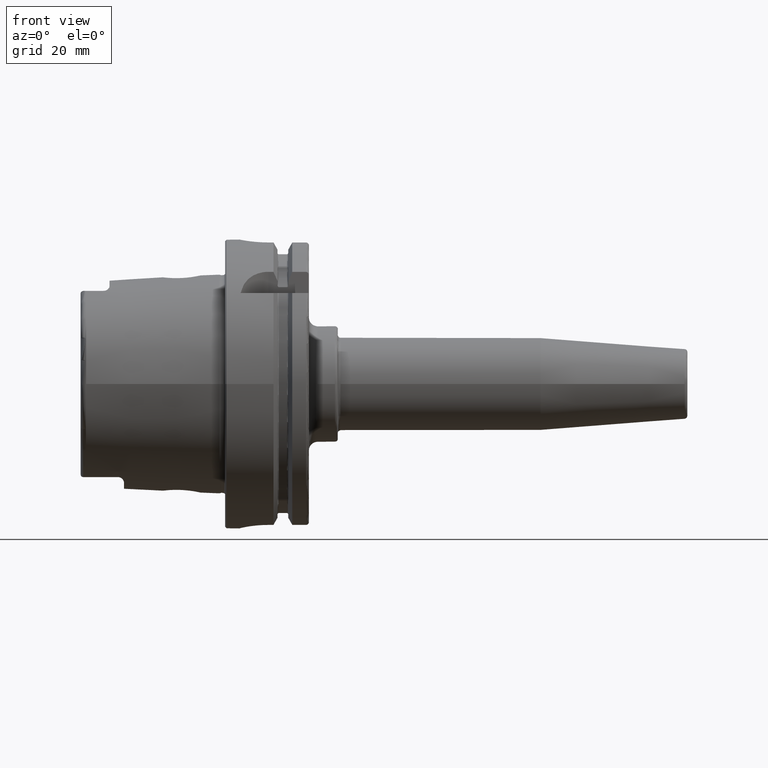
[diagram: clean part render]
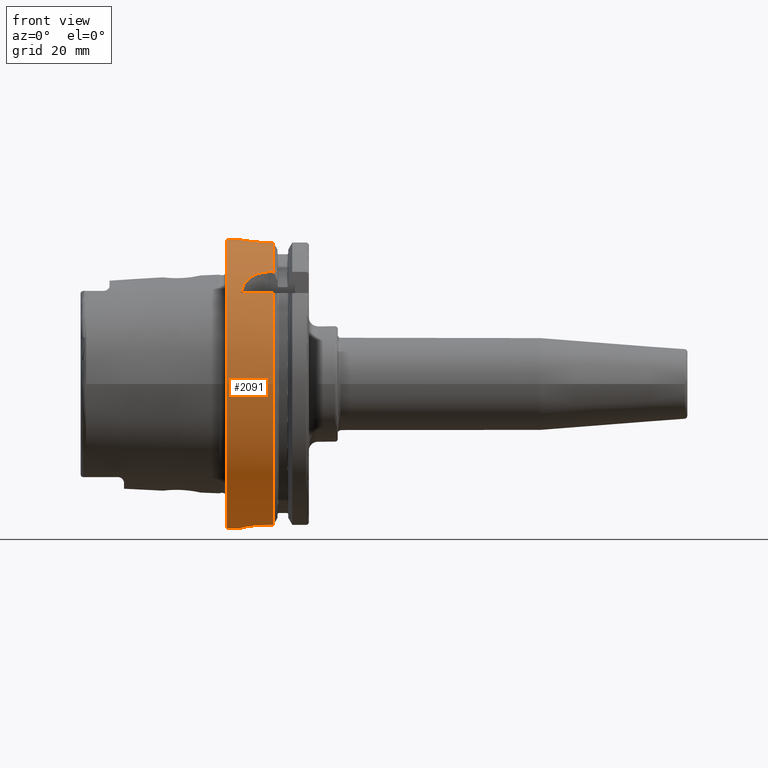
[diagram: same view with one face highlighted and labeled with its STEP entity id]
A machine part, front view. The second image highlights one B-rep face of the part: STEP entity #2091.
In plain terms, the highlighted cylindrical surface (bore or boss wall) has radius 50 mm, axis along (1, 0, 0).
Its self-contained STEP definition (entity closure, byte-faithful):
#56=B_SPLINE_CURVE_WITH_KNOTS('',3,(#3986,#3987,#3988,#3989,#3990,#3991,
#3992,#3993,#3994,#3995,#3996,#3997,#3998,#3999,#4000,#4001,#4002,#4003,
#4004,#4005,#4006,#4007,#4008,#4009,#4010,#4011),.UNSPECIFIED.,.F.,.F.,
(4,2,2,2,2,2,2,2,2,2,2,2,4),(0.,0.188478911015149,0.376957822030298,0.565436091508923,
0.753914360987547,0.942392630466172,1.1308708999448,1.31934981095995,1.50782872197509,
1.69630763299024,1.88478654400539,2.07326481348402,2.26174308296264),
 .UNSPECIFIED.);
#57=B_SPLINE_CURVE_WITH_KNOTS('',3,(#4012,#4013,#4014,#4015,#4016,#4017,
#4018,#4019,#4020,#4021),.UNSPECIFIED.,.F.,.F.,(4,2,2,2,4),(2.26174308296264,
2.45022135244127,2.63869962191989,2.82717853293504,3.01565744395019),
 .UNSPECIFIED.);
#58=B_SPLINE_CURVE_WITH_KNOTS('',3,(#4025,#4026,#4027,#4028,#4029,#4030,
#4031,#4032,#4033,#4034,#4035,#4036),.UNSPECIFIED.,.F.,.F.,(4,2,2,2,2,4),
(1.13213255574021,1.59216410027009,1.87572541272146,2.15928672517283,2.38471683342296,
2.61014694167308),.UNSPECIFIED.);
#65=B_SPLINE_CURVE_WITH_KNOTS('',3,(#4149,#4150,#4151,#4152,#4153,#4154,
#4155,#4156,#4157,#4158,#4159,#4160,#4161,#4162,#4163,#4164,#4165,#4166),
 .UNSPECIFIED.,.F.,.F.,(4,2,2,2,2,2,2,2,4),(0.,0.377795255890194,0.755590511780389,
1.13336459804459,1.51113868430879,1.88891277057299,2.26668685683718,2.64448211272738,
3.02227736861757),.UNSPECIFIED.);
#66=B_SPLINE_CURVE_WITH_KNOTS('',3,(#4174,#4175,#4176,#4177,#4178,#4179,
#4180,#4181,#4182,#4183),.UNSPECIFIED.,.F.,.F.,(4,2,2,2,4),(0.,0.377863193874929,
0.755726387749858,1.13417752669663,1.51262866564341),.UNSPECIFIED.);
#67=B_SPLINE_CURVE_WITH_KNOTS('',3,(#4187,#4188,#4189,#4190,#4191,#4192,
#4193,#4194,#4195,#4196),.UNSPECIFIED.,.F.,.F.,(4,2,2,2,4),(1.50996806152532,
1.8884192004721,2.26687033941887,2.6447335332938,3.02259672716873),
 .UNSPECIFIED.);
#94=FACE_BOUND('',#395,.T.);
#192=CYLINDRICAL_SURFACE('',#2311,50.);
#261=FACE_OUTER_BOUND('',#394,.T.);
#394=EDGE_LOOP('',(#1639,#1640,#1641,#1642,#1643,#1644,#1645,#1646,#1647,
#1648,#1649,#1650,#1651,#1652,#1653,#1654,#1655,#1656));
#395=EDGE_LOOP('',(#1657,#1658));
#522=LINE('',#4042,#630);
#528=LINE('',#4094,#636);
#533=LINE('',#4147,#641);
#534=LINE('',#4168,#642);
#535=LINE('',#4172,#643);
#536=LINE('',#4198,#644);
#537=LINE('',#4202,#645);
#630=VECTOR('',#2750,10.);
#636=VECTOR('',#2758,10.);
#641=VECTOR('',#2767,10.);
#642=VECTOR('',#2768,10.);
#643=VECTOR('',#2771,10.);
#644=VECTOR('',#2774,10.);
#645=VECTOR('',#2777,50.);
#757=CIRCLE('',#2312,50.);
#758=CIRCLE('',#2313,50.);
#759=CIRCLE('',#2314,50.);
#760=CIRCLE('',#2315,50.);
#761=CIRCLE('',#2316,50.);
#762=CIRCLE('',#2317,50.);
#941=VERTEX_POINT('',#3983);
#942=VERTEX_POINT('',#3985);
#943=VERTEX_POINT('',#4023);
#944=VERTEX_POINT('',#4024);
#946=VERTEX_POINT('',#4041);
#955=VERTEX_POINT('',#4093);
#964=VERTEX_POINT('',#4144);
#965=VERTEX_POINT('',#4146);
#966=VERTEX_POINT('',#4148);
#967=VERTEX_POINT('',#4167);
#968=VERTEX_POINT('',#4169);
#969=VERTEX_POINT('',#4171);
#970=VERTEX_POINT('',#4173);
#971=VERTEX_POINT('',#4184);
#972=VERTEX_POINT('',#4186);
#973=VERTEX_POINT('',#4197);
#974=VERTEX_POINT('',#4199);
#975=VERTEX_POINT('',#4201);
#1192=EDGE_CURVE('',#942,#941,#56,.T.);
#1193=EDGE_CURVE('',#941,#942,#57,.T.);
#1194=EDGE_CURVE('',#943,#944,#58,.T.);
#1197=EDGE_CURVE('',#944,#946,#522,.T.);
#1208=EDGE_CURVE('',#955,#943,#528,.T.);
#1218=EDGE_CURVE('',#964,#946,#757,.T.);
#1219=EDGE_CURVE('',#964,#965,#533,.T.);
#1220=EDGE_CURVE('',#965,#966,#65,.T.);
#1221=EDGE_CURVE('',#966,#967,#534,.T.);
#1222=EDGE_CURVE('',#968,#967,#758,.T.);
#1223=EDGE_CURVE('',#968,#969,#535,.T.);
#1224=EDGE_CURVE('',#969,#970,#66,.T.);
#1225=EDGE_CURVE('',#970,#971,#759,.T.);
#1226=EDGE_CURVE('',#971,#972,#67,.T.);
#1227=EDGE_CURVE('',#972,#973,#536,.T.);
#1228=EDGE_CURVE('',#974,#973,#760,.T.);
#1229=EDGE_CURVE('',#974,#975,#537,.T.);
#1230=EDGE_CURVE('',#975,#975,#761,.T.);
#1231=EDGE_CURVE('',#955,#974,#762,.T.);
#1639=ORIENTED_EDGE('',*,*,#1208,.T.);
#1640=ORIENTED_EDGE('',*,*,#1194,.T.);
#1641=ORIENTED_EDGE('',*,*,#1197,.T.);
#1642=ORIENTED_EDGE('',*,*,#1218,.F.);
#1643=ORIENTED_EDGE('',*,*,#1219,.T.);
#1644=ORIENTED_EDGE('',*,*,#1220,.T.);
#1645=ORIENTED_EDGE('',*,*,#1221,.T.);
#1646=ORIENTED_EDGE('',*,*,#1222,.F.);
#1647=ORIENTED_EDGE('',*,*,#1223,.T.);
#1648=ORIENTED_EDGE('',*,*,#1224,.T.);
#1649=ORIENTED_EDGE('',*,*,#1225,.T.);
#1650=ORIENTED_EDGE('',*,*,#1226,.T.);
#1651=ORIENTED_EDGE('',*,*,#1227,.T.);
#1652=ORIENTED_EDGE('',*,*,#1228,.F.);
#1653=ORIENTED_EDGE('',*,*,#1229,.T.);
#1654=ORIENTED_EDGE('',*,*,#1230,.T.);
#1655=ORIENTED_EDGE('',*,*,#1229,.F.);
#1656=ORIENTED_EDGE('',*,*,#1231,.F.);
#1657=ORIENTED_EDGE('',*,*,#1192,.T.);
#1658=ORIENTED_EDGE('',*,*,#1193,.T.);
#2091=ADVANCED_FACE('',(#261,#94),#192,.T.);
#2311=AXIS2_PLACEMENT_3D('',#4143,#2763,#2764);
#2312=AXIS2_PLACEMENT_3D('',#4145,#2765,#2766);
#2313=AXIS2_PLACEMENT_3D('',#4170,#2769,#2770);
#2314=AXIS2_PLACEMENT_3D('',#4185,#2772,#2773);
#2315=AXIS2_PLACEMENT_3D('',#4200,#2775,#2776);
#2316=AXIS2_PLACEMENT_3D('',#4203,#2778,#2779);
#2317=AXIS2_PLACEMENT_3D('',#4204,#2780,#2781);
#2750=DIRECTION('',(1.,0.,0.));
#2758=DIRECTION('',(-1.,0.,0.));
#2763=DIRECTION('center_axis',(1.,0.,0.));
#2764=DIRECTION('ref_axis',(0.,1.,0.));
#2765=DIRECTION('center_axis',(1.,0.,0.));
#2766=DIRECTION('ref_axis',(0.,0.,-1.));
#2767=DIRECTION('',(-1.,0.,0.));
#2768=DIRECTION('',(1.,0.,0.));
#2769=DIRECTION('center_axis',(1.,0.,0.));
#2770=DIRECTION('ref_axis',(0.,0.,-1.));
#2771=DIRECTION('',(-1.,0.,0.));
#2772=DIRECTION('center_axis',(-1.,0.,0.));
#2773=DIRECTION('ref_axis',(0.,1.,0.));
#2774=DIRECTION('',(1.,0.,0.));
#2775=DIRECTION('center_axis',(1.,0.,0.));
#2776=DIRECTION('ref_axis',(0.,0.,-1.));
#2777=DIRECTION('',(-1.,0.,0.));
#2778=DIRECTION('center_axis',(1.,0.,0.));
#2779=DIRECTION('ref_axis',(0.,0.,-1.));
#2780=DIRECTION('center_axis',(1.,0.,0.));
#2781=DIRECTION('ref_axis',(0.,0.,-1.));
#3983=CARTESIAN_POINT('',(12.,50.,-6.12323399573677E-16));
#3985=CARTESIAN_POINT('',(6.99999999999999,49.749371855331,5.));
#3986=CARTESIAN_POINT('Ctrl Pts',(6.99999999999999,49.749371855331,5.));
#3987=CARTESIAN_POINT('Ctrl Pts',(6.37173696328283,49.749371855331,5.));
#3988=CARTESIAN_POINT('Ctrl Pts',(5.70188570880885,49.7624993987098,4.87435544587055));
#3989=CARTESIAN_POINT('Ctrl Pts',(4.4701142477173,49.8098541153698,4.36395693611591));
#3990=CARTESIAN_POINT('Ctrl Pts',(3.90815809537484,49.8433908660961,3.97922590724033));
#3991=CARTESIAN_POINT('Ctrl Pts',(3.02077560297968,49.9062957431473,3.09184341484517));
#3992=CARTESIAN_POINT('Ctrl Pts',(2.63604339567929,49.9397591808605,2.52988660036719));
#3993=CARTESIAN_POINT('Ctrl Pts',(2.12564400622109,49.9869460568296,1.29811292154946));
#3994=CARTESIAN_POINT('Ctrl Pts',(1.99999999999999,50.,0.628260898262081));
#3995=CARTESIAN_POINT('Ctrl Pts',(1.99999999999999,50.,-0.628260898262082));
#3996=CARTESIAN_POINT('Ctrl Pts',(2.12564400622109,49.9869460568296,-1.29811292154946));
#3997=CARTESIAN_POINT('Ctrl Pts',(2.63604339567929,49.9397591808605,-2.52988660036719));
#3998=CARTESIAN_POINT('Ctrl Pts',(3.02077560297968,49.9062957431473,-3.09184341484517));
#3999=CARTESIAN_POINT('Ctrl Pts',(3.90815809537484,49.8433908660961,-3.97922590724033));
#4000=CARTESIAN_POINT('Ctrl Pts',(4.4701142477173,49.8098541153698,-4.36395693611591));
#4001=CARTESIAN_POINT('Ctrl Pts',(5.70188570880885,49.7624993987098,-4.87435544587055));
#4002=CARTESIAN_POINT('Ctrl Pts',(6.37173696328283,49.749371855331,-5.));
#4003=CARTESIAN_POINT('Ctrl Pts',(7.62826303671716,49.749371855331,-5.));
#4004=CARTESIAN_POINT('Ctrl Pts',(8.29811429119113,49.7624993987098,-4.87435544587055));
#4005=CARTESIAN_POINT('Ctrl Pts',(9.52988575228269,49.8098541153698,-4.36395693611591));
#4006=CARTESIAN_POINT('Ctrl Pts',(10.0918419046251,49.8433908660961,-3.97922590724033));
#4007=CARTESIAN_POINT('Ctrl Pts',(10.9792243970203,49.9062957431473,-3.09184341484517));
#4008=CARTESIAN_POINT('Ctrl Pts',(11.3639566043207,49.9397591808605,-2.52988660036719));
#4009=CARTESIAN_POINT('Ctrl Pts',(11.8743559937789,49.9869460568296,-1.29811292154947));
#4010=CARTESIAN_POINT('Ctrl Pts',(12.,50.,-0.628260898262083));
#4011=CARTESIAN_POINT('Ctrl Pts',(12.,50.,-5.55111512312578E-16));
#4012=CARTESIAN_POINT('Ctrl Pts',(12.,50.,-5.55111512312578E-16));
#4013=CARTESIAN_POINT('Ctrl Pts',(12.,50.,0.628260898262082));
#4014=CARTESIAN_POINT('Ctrl Pts',(11.8743559937789,49.9869460568296,1.29811292154946));
#4015=CARTESIAN_POINT('Ctrl Pts',(11.3639566043207,49.9397591808605,2.52988660036719));
#4016=CARTESIAN_POINT('Ctrl Pts',(10.9792243970203,49.9062957431473,3.09184341484517));
#4017=CARTESIAN_POINT('Ctrl Pts',(10.0918419046251,49.8433908660961,3.97922590724033));
#4018=CARTESIAN_POINT('Ctrl Pts',(9.52988575228269,49.8098541153698,4.36395693611591));
#4019=CARTESIAN_POINT('Ctrl Pts',(8.29811429119113,49.7624993987098,4.87435544587055));
#4020=CARTESIAN_POINT('Ctrl Pts',(7.62826303671716,49.749371855331,5.));
#4021=CARTESIAN_POINT('Ctrl Pts',(6.99999999999999,49.749371855331,5.));
#4023=CARTESIAN_POINT('',(5.36310214079494,-38.8297566307078,31.5));
#4024=CARTESIAN_POINT('',(15.,-31.5,38.8297566307078));
#4025=CARTESIAN_POINT('Ctrl Pts',(5.36310214079494,-38.8297566307078,31.5));
#4026=CARTESIAN_POINT('Ctrl Pts',(5.63795050776221,-37.8378299510303,32.722738779917));
#4027=CARTESIAN_POINT('Ctrl Pts',(6.08245260240086,-36.8264130955983,33.8486741193789));
#4028=CARTESIAN_POINT('Ctrl Pts',(7.14730321206235,-35.2667182945212,35.4540138707062));
#4029=CARTESIAN_POINT('Ctrl Pts',(7.68113760815893,-34.6306580359392,36.0741351437033));
#4030=CARTESIAN_POINT('Ctrl Pts',(8.97436758466638,-33.4722127660808,37.1515365058173));
#4031=CARTESIAN_POINT('Ctrl Pts',(9.73574998094174,-32.9521170857844,37.6088911783762));
#4032=CARTESIAN_POINT('Ctrl Pts',(11.1521999725134,-32.2432973482077,38.2170233500259));
#4033=CARTESIAN_POINT('Ctrl Pts',(11.8888981504148,-31.9629772872452,38.4503075998006));
#4034=CARTESIAN_POINT('Ctrl Pts',(13.4369856471743,-31.5908755949743,38.7566077888176));
#4035=CARTESIAN_POINT('Ctrl Pts',(14.2485663058329,-31.5,38.8297566307078));
#4036=CARTESIAN_POINT('Ctrl Pts',(15.,-31.5,38.8297566307078));
#4041=CARTESIAN_POINT('',(16.7379709790786,-31.5,38.8297566307078));
#4042=CARTESIAN_POINT('',(8.61898548953931,-31.5,38.8297566307078));
#4093=CARTESIAN_POINT('',(16.7379709790786,-38.8297566307078,31.5));
#4094=CARTESIAN_POINT('',(8.61898548953931,-38.8297566307078,31.5));
#4143=CARTESIAN_POINT('Origin',(8.61898548953931,0.,0.));
#4144=CARTESIAN_POINT('',(16.7379709790786,-10.,48.9897948556636));
#4145=CARTESIAN_POINT('Origin',(16.7379709790786,0.,0.));
#4146=CARTESIAN_POINT('',(15.,-10.,48.9897948556636));
#4147=CARTESIAN_POINT('',(8.61898548953931,-10.,48.9897948556636));
#4148=CARTESIAN_POINT('',(15.,10.,48.9897948556636));
#4149=CARTESIAN_POINT('Ctrl Pts',(15.,-10.,48.9897948556636));
#4150=CARTESIAN_POINT('Ctrl Pts',(13.740682480366,-10.,48.9897948556636));
#4151=CARTESIAN_POINT('Ctrl Pts',(12.3998222283811,-9.74762796248614,49.0433876618447));
#4152=CARTESIAN_POINT('Ctrl Pts',(9.93707994969945,-8.72605417648382,49.2354150792771));
#4153=CARTESIAN_POINT('Ctrl Pts',(8.81489539818993,-7.95703102192089,49.3709085101933));
#4154=CARTESIAN_POINT('Ctrl Pts',(7.04301862271998,-6.18515424645094,49.6240337638318));
#4155=CARTESIAN_POINT('Ctrl Pts',(6.27395658455242,-5.06294861197626,49.7583347151863));
#4156=CARTESIAN_POINT('Ctrl Pts',(5.25235457764165,-2.60013306081865,49.9476188647081));
#4157=CARTESIAN_POINT('Ctrl Pts',(4.99999999999999,-1.259246954214,50.));
#4158=CARTESIAN_POINT('Ctrl Pts',(4.99999999999999,1.259246954214,50.));
#4159=CARTESIAN_POINT('Ctrl Pts',(5.25235457764165,2.60013306081865,49.9476188647081));
#4160=CARTESIAN_POINT('Ctrl Pts',(6.27395658455242,5.06294861197626,49.7583347151863));
#4161=CARTESIAN_POINT('Ctrl Pts',(7.04301862271998,6.18515424645094,49.6240337638318));
#4162=CARTESIAN_POINT('Ctrl Pts',(8.81489539818993,7.95703102192089,49.3709085101933));
#4163=CARTESIAN_POINT('Ctrl Pts',(9.93707994969945,8.72605417648382,49.2354150792771));
#4164=CARTESIAN_POINT('Ctrl Pts',(12.3998222283811,9.74762796248614,49.0433876618447));
#4165=CARTESIAN_POINT('Ctrl Pts',(13.740682480366,10.,48.9897948556636));
#4166=CARTESIAN_POINT('Ctrl Pts',(15.,10.,48.9897948556636));
#4167=CARTESIAN_POINT('',(16.7379709790786,10.,48.9897948556636));
#4168=CARTESIAN_POINT('',(8.61898548953931,10.,48.9897948556636));
#4169=CARTESIAN_POINT('',(16.7379709790786,11.,-48.7749935930288));
#4170=CARTESIAN_POINT('Origin',(16.7379709790786,0.,0.));
#4171=CARTESIAN_POINT('',(15.,11.,-48.7749935930288));
#4172=CARTESIAN_POINT('',(8.61898548953931,11.,-48.7749935930288));
#4173=CARTESIAN_POINT('',(4.99999999999999,0.999999999999997,-49.9899989998));
#4174=CARTESIAN_POINT('Ctrl Pts',(15.,11.,-48.7749935930288));
#4175=CARTESIAN_POINT('Ctrl Pts',(13.7404560204169,11.,-48.7749935930288));
#4176=CARTESIAN_POINT('Ctrl Pts',(12.3998213084084,10.7475295248871,-48.8340306344483));
#4177=CARTESIAN_POINT('Ctrl Pts',(9.9383361278342,9.72667325975831,-49.0475663096823));
#4178=CARTESIAN_POINT('Ctrl Pts',(8.81713821454868,8.95850056252305,-49.1990678796225));
#4179=CARTESIAN_POINT('Ctrl Pts',(7.04551978193545,7.18842719108522,-49.4887060645896));
#4180=CARTESIAN_POINT('Ctrl Pts',(6.27594389465425,6.06650925178,-49.6460359942126));
#4181=CARTESIAN_POINT('Ctrl Pts',(5.25307325920197,3.60309260864685,-49.8853600567865));
#4182=CARTESIAN_POINT('Ctrl Pts',(4.99999999999999,2.26125147049483,-49.9647689238702));
#4183=CARTESIAN_POINT('Ctrl Pts',(4.99999999999999,1.,-49.9899989998));
#4184=CARTESIAN_POINT('',(4.99999999999999,-1.00000000000001,-49.9899989998));
#4185=CARTESIAN_POINT('Origin',(4.99999999999999,0.,0.));
#4186=CARTESIAN_POINT('',(15.,-11.,-48.7749935930288));
#4187=CARTESIAN_POINT('Ctrl Pts',(4.99999999999999,-1.,-49.9899989998));
#4188=CARTESIAN_POINT('Ctrl Pts',(4.99999999999999,-2.26125147049483,-49.9647689238702));
#4189=CARTESIAN_POINT('Ctrl Pts',(5.25307325920197,-3.60309260864686,-49.8853600567865));
#4190=CARTESIAN_POINT('Ctrl Pts',(6.27594389465425,-6.06650925178001,-49.6460359942126));
#4191=CARTESIAN_POINT('Ctrl Pts',(7.04551978193545,-7.18842719108522,-49.4887060645896));
#4192=CARTESIAN_POINT('Ctrl Pts',(8.81713821454868,-8.95850056252306,-49.1990678796225));
#4193=CARTESIAN_POINT('Ctrl Pts',(9.9383361278342,-9.72667325975831,-49.0475663096823));
#4194=CARTESIAN_POINT('Ctrl Pts',(12.3998213084084,-10.7475295248871,-48.8340306344483));
#4195=CARTESIAN_POINT('Ctrl Pts',(13.7404560204169,-11.,-48.7749935930288));
#4196=CARTESIAN_POINT('Ctrl Pts',(15.,-11.,-48.7749935930288));
#4197=CARTESIAN_POINT('',(16.7379709790786,-11.,-48.7749935930288));
#4198=CARTESIAN_POINT('',(8.61898548953931,-11.,-48.7749935930288));
#4199=CARTESIAN_POINT('',(16.7379709790786,-50.,-6.12323399573677E-15));
#4200=CARTESIAN_POINT('Origin',(16.7379709790786,0.,0.));
#4201=CARTESIAN_POINT('',(0.5,-50.,-6.12323399573677E-15));
#4202=CARTESIAN_POINT('',(8.61898548953931,-50.,-6.12323399573677E-15));
#4203=CARTESIAN_POINT('Origin',(0.5,0.,0.));
#4204=CARTESIAN_POINT('Origin',(16.7379709790786,0.,0.));